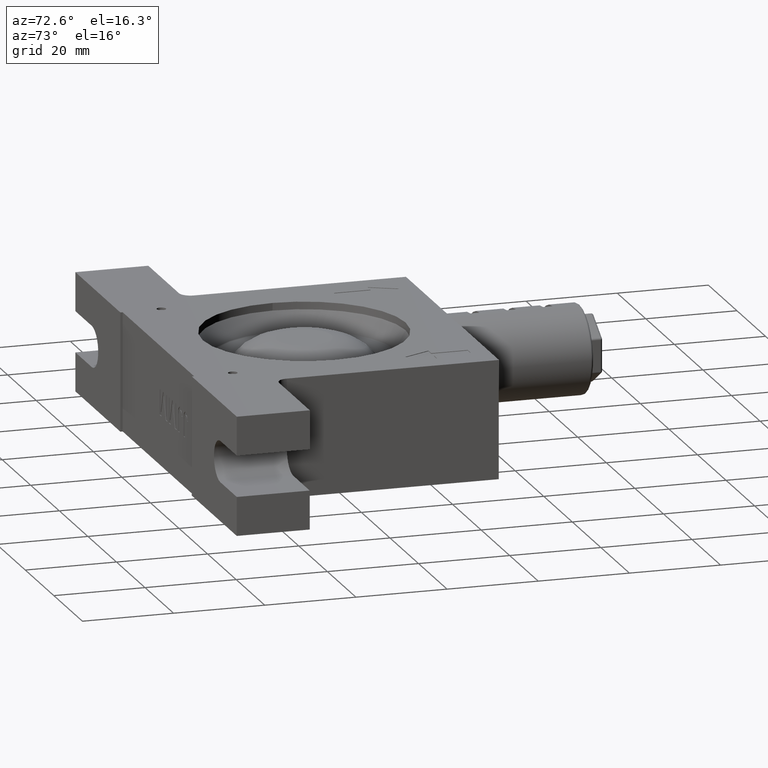
[diagram: clean part render]
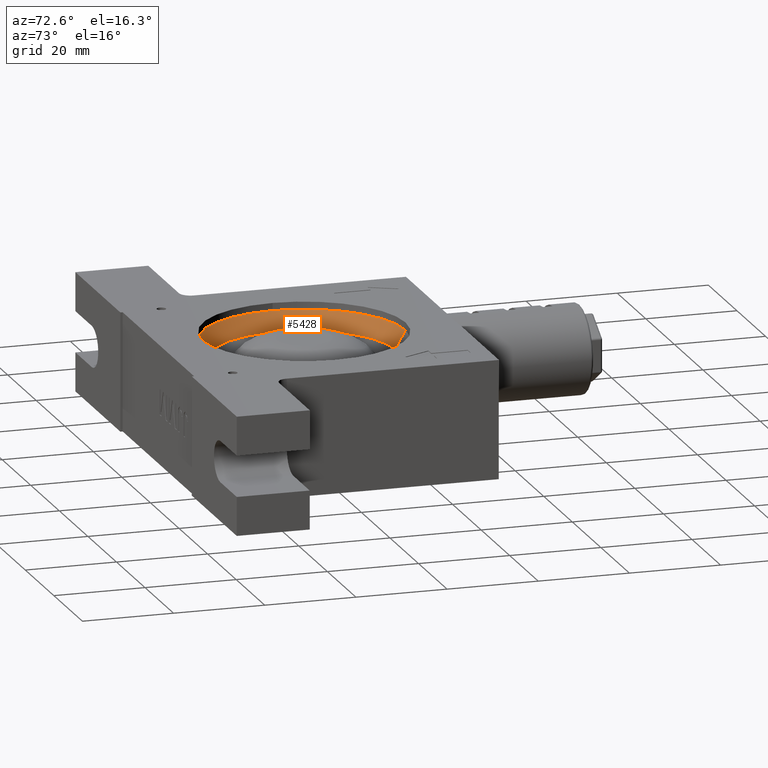
[diagram: same view with one face highlighted and labeled with its STEP entity id]
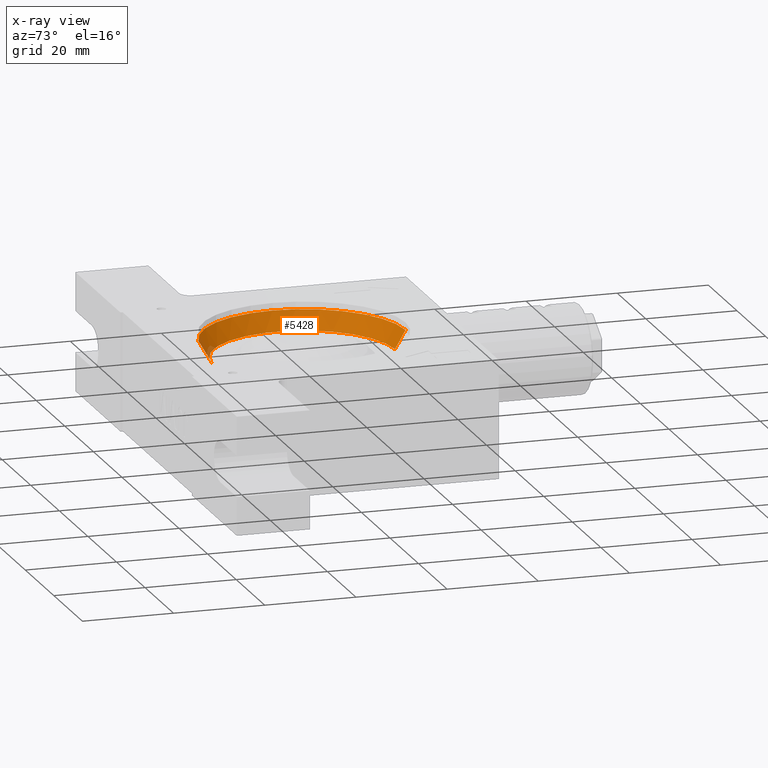
[diagram: x-ray of the same camera — body ghosted, the highlighted face saturated]
A machine part, auxiliary view. The second image highlights one B-rep face of the part: STEP entity #5428.
The next image is the same camera in x-ray: the body ghosted, the highlighted face saturated — about 1% of this face is hidden behind the body in this view.
In plain terms, the highlighted conical surface has half-angle 30 deg.
Its self-contained STEP definition (entity closure, byte-faithful):
#467 = ORIENTED_EDGE ( 'NONE', *, *, #3539, .T. ) ;
#555 = AXIS2_PLACEMENT_3D ( 'NONE', #4251, #2080, #1029 ) ;
#1019 = DIRECTION ( 'NONE',  ( 1.665334536937734800E-016, 1.000000000000000000, -1.561210639728350000E-016 ) ) ;
#1029 = DIRECTION ( 'NONE',  ( 1.665334536937734800E-016, 1.000000000000000000, -1.312408397102917500E-016 ) ) ;
#1234 = CARTESIAN_POINT ( 'NONE',  ( -5.727325909203532000E-015, -19.82679491924309900, 7.200000000000002800 ) ) ;
#1391 = EDGE_CURVE ( 'NONE', #1964, #2498, #6007, .T. ) ;
#1448 = DIRECTION ( 'NONE',  ( -8.602726321297810600E-018, -1.224606353822375800E-016, -1.000000000000000000 ) ) ;
#1484 = ORIENTED_EDGE ( 'NONE', *, *, #5720, .T. ) ;
#1567 = AXIS2_PLACEMENT_3D ( 'NONE', #4085, #1448, #2505 ) ;
#1626 = CARTESIAN_POINT ( 'NONE',  ( 3.828213212977504900E-017, -6.123031769109110800E-018, 11.35000000000000100 ) ) ;
#1964 = VERTEX_POINT ( 'NONE', #3291 ) ;
#2028 = VERTEX_POINT ( 'NONE', #4911 ) ;
#2080 = DIRECTION ( 'NONE',  ( 8.602726321297810600E-018, 1.224606353822375800E-016, 1.000000000000000000 ) ) ;
#2226 = VECTOR ( 'NONE', #4877, 999.9999999999998900 ) ;
#2498 = VERTEX_POINT ( 'NONE', #5789 ) ;
#2505 = DIRECTION ( 'NONE',  ( 1.665334536937734800E-016, 1.000000000000000000, -1.306700787367633300E-016 ) ) ;
#2972 = CARTESIAN_POINT ( 'NONE',  ( 3.320118080572175400E-015, 19.91339745962155000, 7.349999999999997000 ) ) ;
#2973 = ORIENTED_EDGE ( 'NONE', *, *, #6346, .T. ) ;
#3060 = ORIENTED_EDGE ( 'NONE', *, *, #1391, .F. ) ;
#3291 = CARTESIAN_POINT ( 'NONE',  ( -6.067564320616211100E-015, -19.91339745962155000, 7.350000000000002300 ) ) ;
#3539 = EDGE_CURVE ( 'NONE', #2028, #2498, #4706, .T. ) ;
#3709 = DIRECTION ( 'NONE',  ( 8.602726321297810600E-018, 1.224606353822375800E-016, 1.000000000000000000 ) ) ;
#3792 = CARTESIAN_POINT ( 'NONE',  ( 3.304405451476103100E-015, 19.82679491924309900, 7.199999999999997500 ) ) ;
#3920 = VERTEX_POINT ( 'NONE', #2972 ) ;
#3956 = DIRECTION ( 'NONE',  ( -1.370488872682053100E-016, -0.4999999999999993300, 0.8660254037844390400 ) ) ;
#4085 = CARTESIAN_POINT ( 'NONE',  ( 3.871226844583765700E-018, -4.959655732980599700E-016, 7.349999999999999600 ) ) ;
#4203 = AXIS2_PLACEMENT_3D ( 'NONE', #1626, #3709, #1019 ) ;
#4251 = CARTESIAN_POINT ( 'NONE',  ( 2.580817896389110400E-018, -5.143346686053959400E-016, 7.200000000000000200 ) ) ;
#4298 = EDGE_LOOP ( 'NONE', ( #3060, #1484, #2973, #467 ) ) ;
#4706 = CIRCLE ( 'NONE', #4203, 22.22279853638005100 ) ;
#4877 = DIRECTION ( 'NONE',  ( 9.071690638293561100E-017, 0.4999999999999996100, 0.8660254037844389300 ) ) ;
#4911 = CARTESIAN_POINT ( 'NONE',  ( 3.739121523134078500E-015, 22.22279853638004400, 11.34999999999999800 ) ) ;
#4937 = CONICAL_SURFACE ( 'NONE', #555, 19.82679491924309900, 0.5235987755982982600 ) ;
#5010 = VECTOR ( 'NONE', #3956, 1000.000000000000000 ) ;
#5103 = CIRCLE ( 'NONE', #1567, 19.91339745962155000 ) ;
#5428 = ADVANCED_FACE ( 'NONE', ( #5847 ), #4937, .F. ) ;
#5720 = EDGE_CURVE ( 'NONE', #1964, #3920, #5103, .T. ) ;
#5756 = LINE ( 'NONE', #3792, #2226 ) ;
#5789 = CARTESIAN_POINT ( 'NONE',  ( -6.384065168441959200E-015, -22.22279853638004400, 11.35000000000000300 ) ) ;
#5847 = FACE_OUTER_BOUND ( 'NONE', #4298, .T. ) ;
#6007 = LINE ( 'NONE', #1234, #5010 ) ;
#6346 = EDGE_CURVE ( 'NONE', #3920, #2028, #5756, .T. ) ;